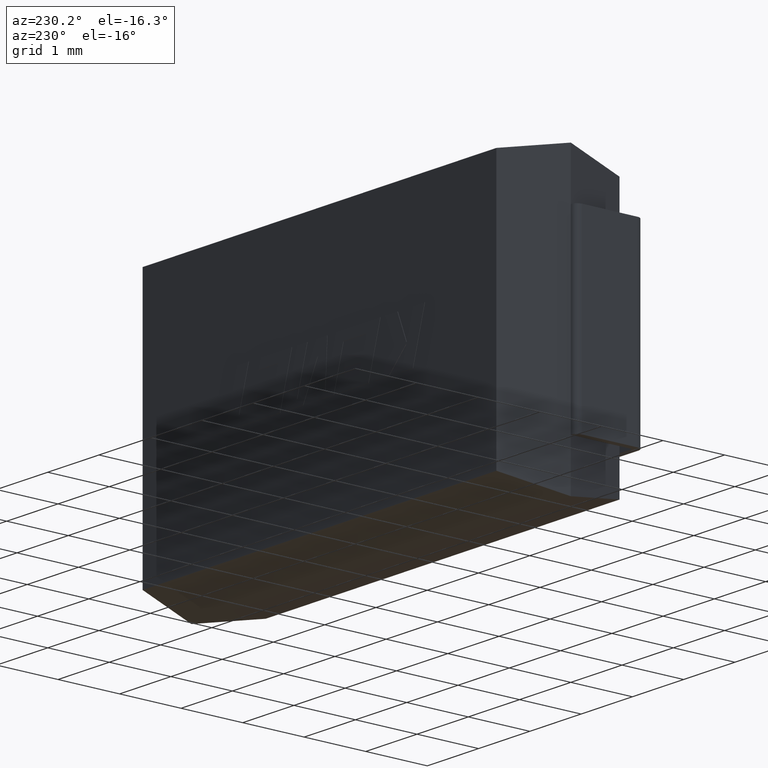
[diagram: clean part render]
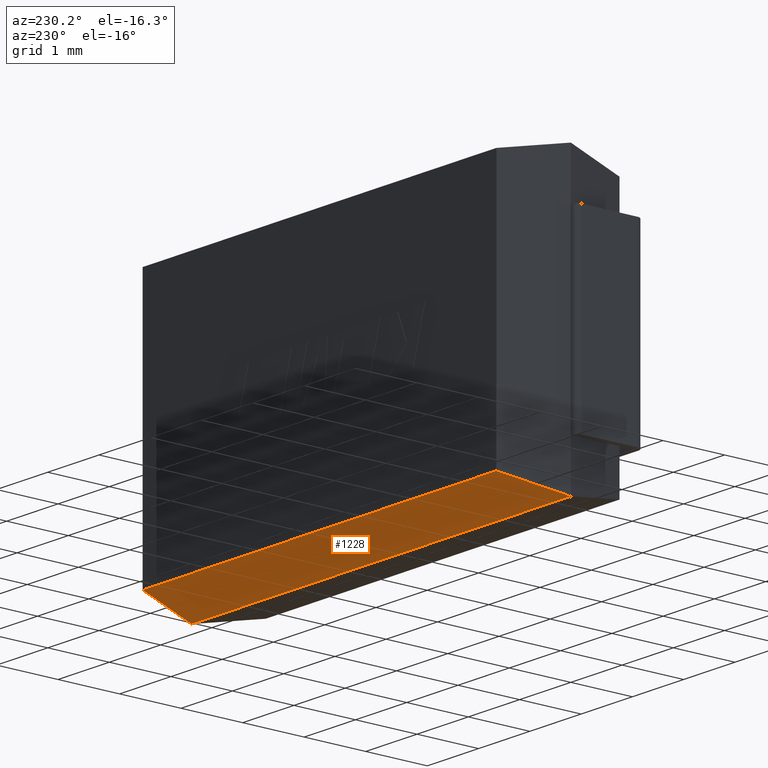
[diagram: same view with one face highlighted and labeled with its STEP entity id]
A machine part, auxiliary view. The second image highlights one B-rep face of the part: STEP entity #1228.
In plain terms, the highlighted planar face has unit normal (0, 0.1961, -0.9806).
Its self-contained STEP definition (entity closure, byte-faithful):
#17 = ORIENTED_EDGE ( 'NONE', *, *, #1970, .T. ) ;
#117 = ORIENTED_EDGE ( 'NONE', *, *, #1435, .T. ) ;
#252 = FACE_OUTER_BOUND ( 'NONE', #1032, .T. ) ;
#316 = CARTESIAN_POINT ( 'NONE',  ( 7.399999999999999467, 0.9999999999999991118, -4.599999999999999645 ) ) ;
#344 = LINE ( 'NONE', #316, #848 ) ;
#353 = DIRECTION ( 'NONE',  ( 0.2380952380952381098, -0.9523809523809524391, -0.1904761904761897995 ) ) ;
#439 = DIRECTION ( 'NONE',  ( 0.000000000000000000, 0.1961161351381833784, -0.9805806756909203337 ) ) ;
#605 = VECTOR ( 'NONE', #353, 1000.000000000000227 ) ;
#732 = VERTEX_POINT ( 'NONE', #1192 ) ;
#754 = VECTOR ( 'NONE', #2667, 1000.000000000000000 ) ;
#782 = LINE ( 'NONE', #1742, #754 ) ;
#784 = CARTESIAN_POINT ( 'NONE',  ( 7.399999999999999467, 0.9999999999999991118, -4.599999999999999645 ) ) ;
#848 = VECTOR ( 'NONE', #1929, 1000.000000000000000 ) ;
#895 = AXIS2_PLACEMENT_3D ( 'NONE', #2975, #439, #1367 ) ;
#969 = VERTEX_POINT ( 'NONE', #2777 ) ;
#1032 = EDGE_LOOP ( 'NONE', ( #2008, #117, #17, #2228 ) ) ;
#1069 = LINE ( 'NONE', #1740, #2010 ) ;
#1192 = CARTESIAN_POINT ( 'NONE',  ( 0.000000000000000000, 0.9999999999999991118, -4.599999999999999645 ) ) ;
#1228 = ADVANCED_FACE ( 'NONE', ( #252 ), #2788, .T. ) ;
#1342 = VERTEX_POINT ( 'NONE', #1935 ) ;
#1367 = DIRECTION ( 'NONE',  ( 0.000000000000000000, 0.9805806756909203337, 0.1961161351381833784 ) ) ;
#1432 = EDGE_CURVE ( 'NONE', #1342, #969, #1069, .T. ) ;
#1435 = EDGE_CURVE ( 'NONE', #1342, #2400, #1507, .T. ) ;
#1507 = LINE ( 'NONE', #1777, #605 ) ;
#1740 = CARTESIAN_POINT ( 'NONE',  ( 7.399999999999999467, 2.000000000000000888, -4.400000000000000355 ) ) ;
#1742 = CARTESIAN_POINT ( 'NONE',  ( -0.2267573696145122608, 0.09297052154194979101, -4.781405895691609231 ) ) ;
#1777 = CARTESIAN_POINT ( 'NONE',  ( 7.207256235827663282, 1.770975056689342297, -4.445804988662131585 ) ) ;
#1929 = DIRECTION ( 'NONE',  ( -1.000000000000000000, 0.000000000000000000, 0.000000000000000000 ) ) ;
#1935 = CARTESIAN_POINT ( 'NONE',  ( 7.149999999999999467, 2.000000000000000000, -4.400000000000000355 ) ) ;
#1970 = EDGE_CURVE ( 'NONE', #2400, #732, #344, .T. ) ;
#2008 = ORIENTED_EDGE ( 'NONE', *, *, #1432, .F. ) ;
#2010 = VECTOR ( 'NONE', #2665, 1000.000000000000000 ) ;
#2228 = ORIENTED_EDGE ( 'NONE', *, *, #2740, .F. ) ;
#2400 = VERTEX_POINT ( 'NONE', #784 ) ;
#2665 = DIRECTION ( 'NONE',  ( -1.000000000000000000, 0.000000000000000000, 0.000000000000000000 ) ) ;
#2667 = DIRECTION ( 'NONE',  ( -0.2380952380952380265, -0.9523809523809525501, -0.1904761904761898550 ) ) ;
#2740 = EDGE_CURVE ( 'NONE', #969, #732, #782, .T. ) ;
#2777 = CARTESIAN_POINT ( 'NONE',  ( 0.2500000000000002220, 2.000000000000000888, -4.400000000000000355 ) ) ;
#2788 = PLANE ( 'NONE',  #895 ) ;
#2975 = CARTESIAN_POINT ( 'NONE',  ( 7.399999999999999467, 0.9230769230769200195, -4.615384615384615863 ) ) ;